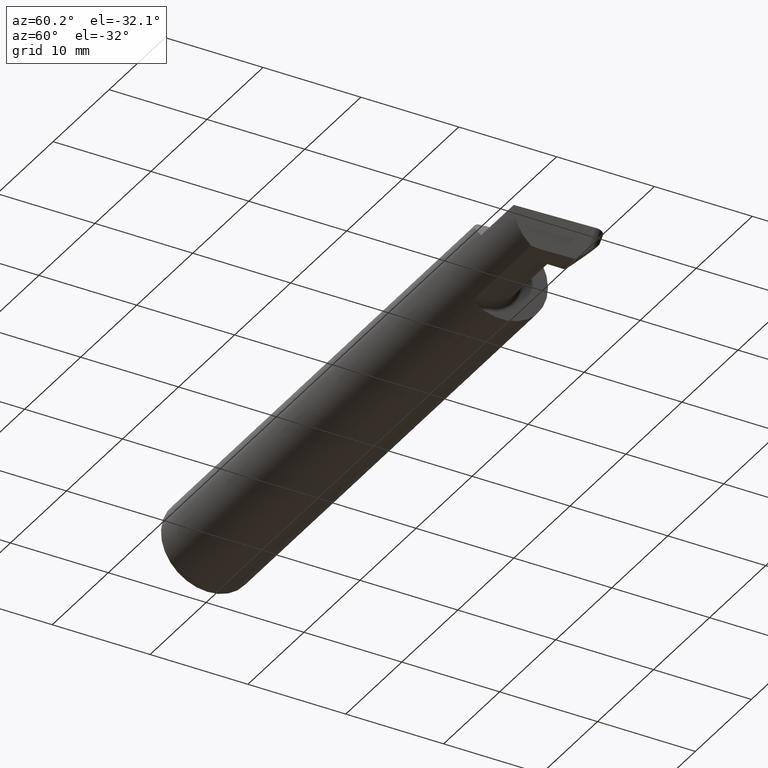
[diagram: clean part render]
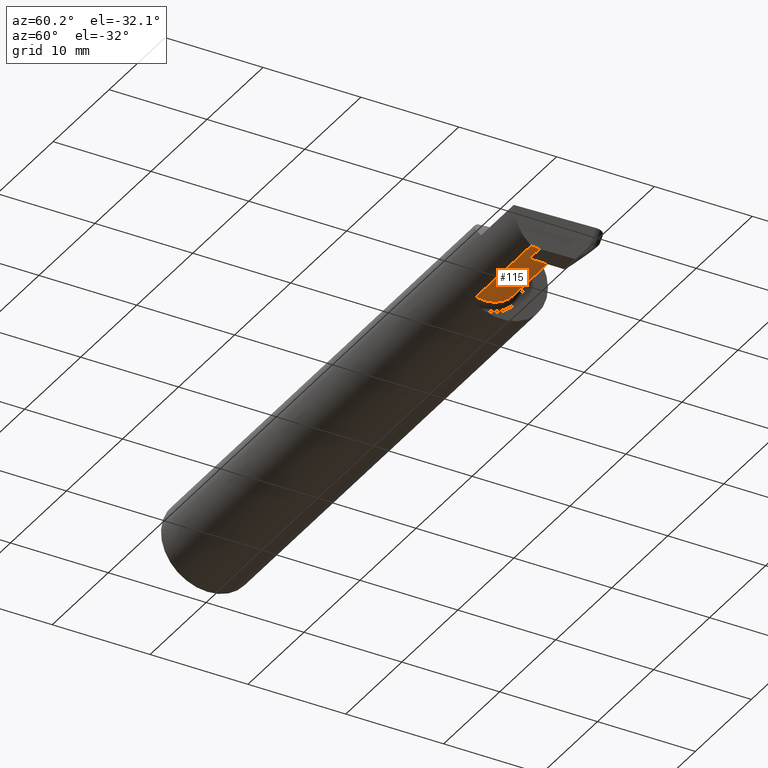
[diagram: same view with one face highlighted and labeled with its STEP entity id]
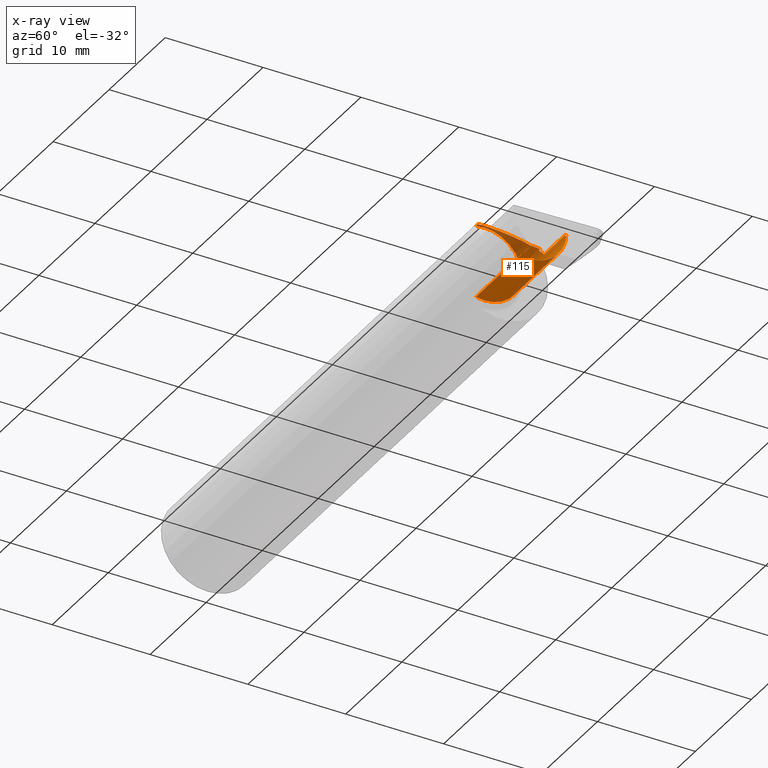
[diagram: x-ray of the same camera — body ghosted, the highlighted face saturated]
A machine part, auxiliary view. The second image highlights one B-rep face of the part: STEP entity #115.
The next image is the same camera in x-ray: the body ghosted, the highlighted face saturated — about 17% of this face is hidden behind the body in this view.
In plain terms, the highlighted cylindrical surface (partial cylindrical patch) has radius 3.81 mm, axis along (-1, -0, -0).
Its self-contained STEP definition (entity closure, byte-faithful):
#7 = EDGE_CURVE ( 'NONE', #435, #216, #571, .T. ) ;
#8 = CYLINDRICAL_SURFACE ( 'NONE', #538, 0.1500000000000000500 ) ;
#19 = CARTESIAN_POINT ( 'NONE',  ( 2.260000000000000231, 0.06665000000000002867, 5.204748896376251932E-17 ) ) ;
#23 = CARTESIAN_POINT ( 'NONE',  ( 2.488815404197634251, -0.1061291577212408049, -0.1486999626928446339 ) ) ;
#26 = ORIENTED_EDGE ( 'NONE', *, *, #690, .F. ) ;
#28 = LINE ( 'NONE', #593, #583 ) ;
#30 = CARTESIAN_POINT ( 'NONE',  ( 2.075000000000000178, 0.06655862405286419592, -0.005234924505381327239 ) ) ;
#39 = B_SPLINE_CURVE_WITH_KNOTS ( 'NONE', 3,
 ( #676, #615, #394, #77 ),
 .UNSPECIFIED., .F., .F.,
 ( 4, 4 ),
 ( 0.000000000000000000, 1.000000000000000000 ),
 .UNSPECIFIED. ) ;
#41 = CARTESIAN_POINT ( 'NONE',  ( 2.415998328610626800, 0.06357628547474560021, -0.09063792740366215239 ) ) ;
#64 =( BOUNDED_CURVE ( )  B_SPLINE_CURVE ( 3, ( #124, #484, #375, #558 ),
 .UNSPECIFIED., .F., .T. ) 
 B_SPLINE_CURVE_WITH_KNOTS ( ( 4, 4 ),
 ( 6.055147272130142255, 7.853981633974482790 ),
 .UNSPECIFIED. ) 
 CURVE ( )  GEOMETRIC_REPRESENTATION_ITEM ( )  RATIONAL_B_SPLINE_CURVE ( ( 1.000000000000000000, 0.7480442670255268434, 0.7480442670255268434, 1.000000000000000000 ) ) 
 REPRESENTATION_ITEM ( '' )  );
#77 = CARTESIAN_POINT ( 'NONE',  ( 2.405238904245578624, 0.06664999999999991764, 0.000000000000000000 ) ) ;
#82 = CARTESIAN_POINT ( 'NONE',  ( 2.075000000000000178, 0.06665000000000002867, 5.204748896376251932E-17 ) ) ;
#107 = VECTOR ( 'NONE', #508, 39.37007874015748143 ) ;
#115 = ADVANCED_FACE ( 'NONE', ( #270 ), #8, .T. ) ;
#119 = AXIS2_PLACEMENT_3D ( 'NONE', #442, #495, #665 ) ;
#122 = DIRECTION ( 'NONE',  ( -1.000000000000000000, -5.069406624455083742E-17, -0.000000000000000000 ) ) ;
#124 = CARTESIAN_POINT ( 'NONE',  ( 2.113883229301068312, -0.1172600179964006784, 0.1461167706989302539 ) ) ;
#130 = EDGE_CURVE ( 'NONE', #531, #636, #404, .T. ) ;
#145 = DIRECTION ( 'NONE',  ( -1.000000000000000000, -5.069406624455083742E-17, -0.000000000000000000 ) ) ;
#147 = CARTESIAN_POINT ( 'NONE',  ( 2.489588163846105484, -0.08335000000000003517, -0.1500000000000000500 ) ) ;
#187 = EDGE_CURVE ( 'NONE', #531, #250, #232, .T. ) ;
#192 = CARTESIAN_POINT ( 'NONE',  ( 2.488471823259917226, -0.1172600179964005951, -0.1461167706989303927 ) ) ;
#196 = LINE ( 'NONE', #82, #107 ) ;
#211 = DIRECTION ( 'NONE',  ( -1.000000000000000000, -0.000000000000000000, -0.000000000000000000 ) ) ;
#216 = VERTEX_POINT ( 'NONE', #511 ) ;
#219 = DIRECTION ( 'NONE',  ( 0.000000000000000000, -1.000000000000000000, 0.000000000000000000 ) ) ;
#228 = DIRECTION ( 'NONE',  ( 1.000000000000000000, 5.069406624455083742E-17, 0.000000000000000000 ) ) ;
#232 = LINE ( 'NONE', #683, #699 ) ;
#244 = DIRECTION ( 'NONE',  ( -1.000000000000000000, -5.069406624455083742E-17, -0.000000000000000000 ) ) ;
#248 = CARTESIAN_POINT ( 'NONE',  ( 2.489189135516857831, -0.09477667630339410565, -0.1500000000000000500 ) ) ;
#250 = VERTEX_POINT ( 'NONE', #574 ) ;
#253 = CARTESIAN_POINT ( 'NONE',  ( 2.405238904245578624, 0.06664999999999991764, 0.000000000000000000 ) ) ;
#255 = ORIENTED_EDGE ( 'NONE', *, *, #187, .T. ) ;
#261 = VERTEX_POINT ( 'NONE', #19 ) ;
#270 = FACE_OUTER_BOUND ( 'NONE', #485, .T. ) ;
#284 = CARTESIAN_POINT ( 'NONE',  ( 2.417117327835069940, -0.08334999999999997966, -0.1500000000000000500 ) ) ;
#294 = EDGE_CURVE ( 'NONE', #590, #435, #28, .T. ) ;
#297 = ORIENTED_EDGE ( 'NONE', *, *, #635, .F. ) ;
#303 = ORIENTED_EDGE ( 'NONE', *, *, #130, .F. ) ;
#304 = VECTOR ( 'NONE', #145, 39.37007874015748143 ) ;
#315 = ORIENTED_EDGE ( 'NONE', *, *, #504, .F. ) ;
#335 = CARTESIAN_POINT ( 'NONE',  ( 2.405147528298442694, 0.06655862405286415429, -0.005234924505382105263 ) ) ;
#342 =( BOUNDED_CURVE ( )  B_SPLINE_CURVE ( 3, ( #192, #23, #248, #147 ),
 .UNSPECIFIED., .F., .F. ) 
 B_SPLINE_CURVE_WITH_KNOTS ( ( 4, 4 ),
 ( 0.8789888184544064620, 1.107026853503849440 ),
 .UNSPECIFIED. ) 
 CURVE ( )  GEOMETRIC_REPRESENTATION_ITEM ( )  RATIONAL_B_SPLINE_CURVE ( ( 1.000000000000000000, 0.9956712472009929815, 0.9956712472009929815, 1.000000000000000000 ) ) 
 REPRESENTATION_ITEM ( '' )  );
#347 = VERTEX_POINT ( 'NONE', #253 ) ;
#355 = CARTESIAN_POINT ( 'NONE',  ( 2.488471823259917226, -0.1172600179964005951, -0.1461167706989303927 ) ) ;
#367 = CARTESIAN_POINT ( 'NONE',  ( 2.414454177608814867, 0.06655862405286415429, -0.005234924505383332580 ) ) ;
#375 = CARTESIAN_POINT ( 'NONE',  ( 2.155331797197862720, 0.06665000000000004254, 0.1046682028021360955 ) ) ;
#378 = ORIENTED_EDGE ( 'NONE', *, *, #614, .T. ) ;
#380 = EDGE_CURVE ( 'NONE', #585, #636, #534, .T. ) ;
#389 = CARTESIAN_POINT ( 'NONE',  ( 2.100000000000000089, -0.1172600179964006090, 0.1461167706989304205 ) ) ;
#394 = CARTESIAN_POINT ( 'NONE',  ( 2.405208445596533462, 0.06661954135095465857, -0.001744974835127368999 ) ) ;
#396 = ORIENTED_EDGE ( 'NONE', *, *, #543, .T. ) ;
#404 = CIRCLE ( 'NONE', #119, 0.1500000000000000500 ) ;
#419 = CARTESIAN_POINT ( 'NONE',  ( 2.255902845000000045, -0.1172600179964006090, -0.1461167706989303927 ) ) ;
#422 = ORIENTED_EDGE ( 'NONE', *, *, #7, .F. ) ;
#435 = VERTEX_POINT ( 'NONE', #284 ) ;
#442 = CARTESIAN_POINT ( 'NONE',  ( 2.100000000000000089, -0.08334999999999999354, 0.000000000000000000 ) ) ;
#454 = LINE ( 'NONE', #30, #491 ) ;
#470 = ORIENTED_EDGE ( 'NONE', *, *, #380, .T. ) ;
#482 = CARTESIAN_POINT ( 'NONE',  ( 2.417090374579074386, 0.002105059811797807632, -0.1500000000000000777 ) ) ;
#484 = CARTESIAN_POINT ( 'NONE',  ( 2.090221225029926355, -0.01530148607434163137, 0.1697787749700727100 ) ) ;
#485 = EDGE_LOOP ( 'NONE', ( #470, #303, #255, #396, #378, #315, #26, #422, #658, #297 ) ) ;
#491 = VECTOR ( 'NONE', #244, 39.37007874015748143 ) ;
#495 = DIRECTION ( 'NONE',  ( -1.000000000000000000, -5.069406624455083742E-17, -0.000000000000000000 ) ) ;
#504 = EDGE_CURVE ( 'NONE', #541, #347, #39, .T. ) ;
#508 = DIRECTION ( 'NONE',  ( 1.000000000000000000, 5.069406624455083742E-17, 0.000000000000000000 ) ) ;
#511 = CARTESIAN_POINT ( 'NONE',  ( 2.414454177608814867, 0.06655862405286415429, -0.005234924505383332580 ) ) ;
#531 = VERTEX_POINT ( 'NONE', #389 ) ;
#532 = CARTESIAN_POINT ( 'NONE',  ( 2.417117327835069940, -0.08334999999999997966, -0.1500000000000000500 ) ) ;
#534 = LINE ( 'NONE', #419, #304 ) ;
#538 = AXIS2_PLACEMENT_3D ( 'NONE', #662, #122, #219 ) ;
#541 = VERTEX_POINT ( 'NONE', #335 ) ;
#543 = EDGE_CURVE ( 'NONE', #250, #261, #64, .T. ) ;
#558 = CARTESIAN_POINT ( 'NONE',  ( 2.260000000000000231, 0.06665000000000002867, 5.204748896376251932E-17 ) ) ;
#571 =( BOUNDED_CURVE ( )  B_SPLINE_CURVE ( 3, ( #532, #482, #41, #367 ),
 .UNSPECIFIED., .F., .T. ) 
 B_SPLINE_CURVE_WITH_KNOTS ( ( 4, 4 ),
 ( 3.159045946109733549, 4.694935687864688845 ),
 .UNSPECIFIED. ) 
 CURVE ( )  GEOMETRIC_REPRESENTATION_ITEM ( )  RATIONAL_B_SPLINE_CURVE ( ( 1.000000000000000000, 0.8128932002257800438, 0.8128932002257800438, 1.000000000000000000 ) ) 
 REPRESENTATION_ITEM ( '' )  );
#574 = CARTESIAN_POINT ( 'NONE',  ( 2.113883229301068312, -0.1172600179964006784, 0.1461167706989302539 ) ) ;
#581 = CARTESIAN_POINT ( 'NONE',  ( 2.100000000000000089, -0.1172600179964006506, -0.1461167706989303927 ) ) ;
#583 = VECTOR ( 'NONE', #211, 39.37007874015748143 ) ;
#585 = VERTEX_POINT ( 'NONE', #355 ) ;
#590 = VERTEX_POINT ( 'NONE', #625 ) ;
#593 = CARTESIAN_POINT ( 'NONE',  ( 2.733184360054361939, -0.08335000000000003517, -0.1500000000000000500 ) ) ;
#614 = EDGE_CURVE ( 'NONE', #261, #347, #196, .T. ) ;
#615 = CARTESIAN_POINT ( 'NONE',  ( 2.405177986947488300, 0.06658908270190941336, -0.003489949670254738432 ) ) ;
#625 = CARTESIAN_POINT ( 'NONE',  ( 2.489588163846105484, -0.08335000000000003517, -0.1500000000000000500 ) ) ;
#635 = EDGE_CURVE ( 'NONE', #585, #590, #342, .T. ) ;
#636 = VERTEX_POINT ( 'NONE', #581 ) ;
#658 = ORIENTED_EDGE ( 'NONE', *, *, #294, .F. ) ;
#662 = CARTESIAN_POINT ( 'NONE',  ( 2.075000000000000178, -0.08334999999999999354, 0.000000000000000000 ) ) ;
#665 = DIRECTION ( 'NONE',  ( 0.000000000000000000, -1.000000000000000000, 0.000000000000000000 ) ) ;
#676 = CARTESIAN_POINT ( 'NONE',  ( 2.405147528298442694, 0.06655862405286415429, -0.005234924505382105263 ) ) ;
#683 = CARTESIAN_POINT ( 'NONE',  ( 2.255902845000000045, -0.1172600179964006090, 0.1461167706989303927 ) ) ;
#690 = EDGE_CURVE ( 'NONE', #216, #541, #454, .T. ) ;
#699 = VECTOR ( 'NONE', #228, 39.37007874015748143 ) ;